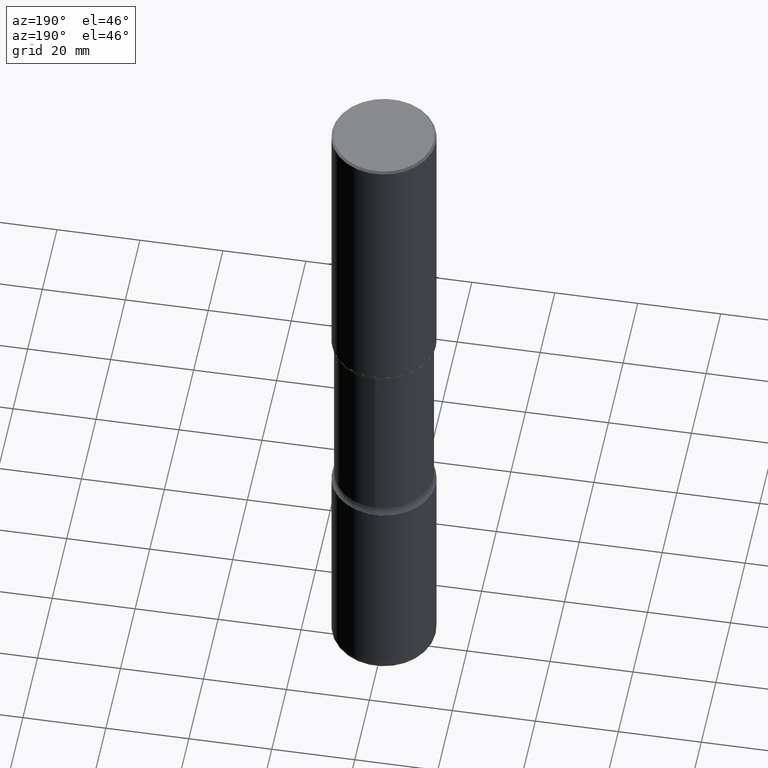
[diagram: clean part render]
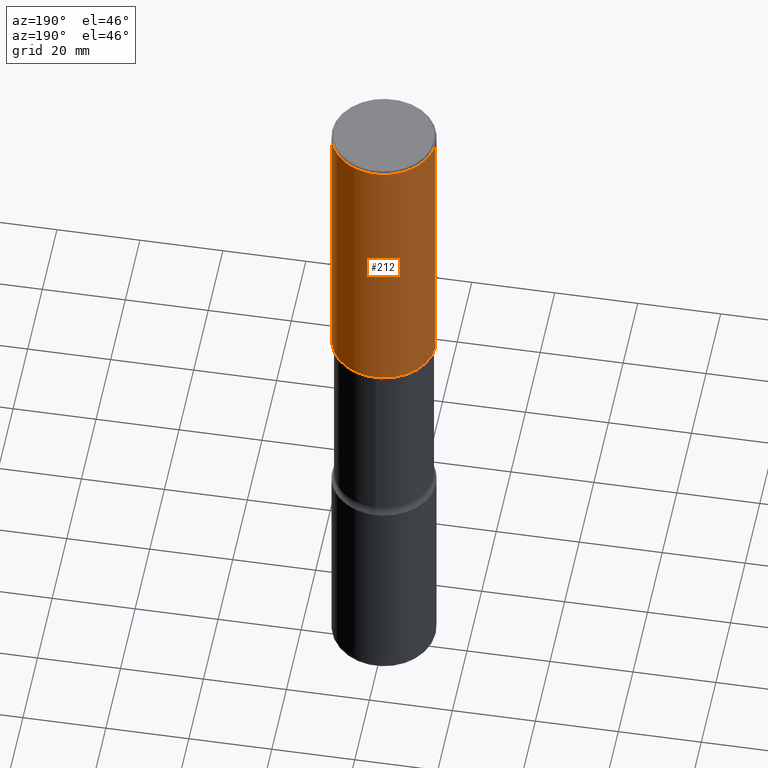
[diagram: same view with one face highlighted and labeled with its STEP entity id]
A machine part, auxiliary view. The second image highlights one B-rep face of the part: STEP entity #212.
In plain terms, the highlighted cylindrical surface (partial cylindrical patch) has radius 12.5006 mm, axis along (-0, 0, 1).
Its self-contained STEP definition (entity closure, byte-faithful):
#26 = CYLINDRICAL_SURFACE ( 'NONE', #505, 0.4921500000000000874 ) ;
#42 = CIRCLE ( 'NONE', #402, 0.4921500000000002539 ) ;
#57 = DIRECTION ( 'NONE',  ( 1.000000000000000000, -6.982962677686265922E-15, 4.876176775795935793E-29 ) ) ;
#80 = CARTESIAN_POINT ( 'NONE',  ( -0.4921500000000002539, -1.349065450204005425E-15, -2.755899999999998240 ) ) ;
#125 = EDGE_LOOP ( 'NONE', ( #174, #211, #469, #365 ) ) ;
#130 = EDGE_CURVE ( 'NONE', #398, #197, #354, .T. ) ;
#138 = DIRECTION ( 'NONE',  ( -2.445468806185136597E-29, 3.491481338843145583E-15, 1.000000000000000000 ) ) ;
#141 = DIRECTION ( 'NONE',  ( -2.445468806185136877E-29, 3.491481338843145188E-15, 1.000000000000000000 ) ) ;
#148 = EDGE_CURVE ( 'NONE', #548, #197, #404, .T. ) ;
#155 = FACE_OUTER_BOUND ( 'NONE', #125, .T. ) ;
#174 = ORIENTED_EDGE ( 'NONE', *, *, #290, .T. ) ;
#186 = CARTESIAN_POINT ( 'NONE',  ( 4.890937612370289799E-31, -6.982962677686315028E-17, -0.02000000000000006981 ) ) ;
#193 = CARTESIAN_POINT ( 'NONE',  ( 0.000000000000000000, 0.000000000000000000, 0.000000000000000000 ) ) ;
#197 = VERTEX_POINT ( 'NONE', #273 ) ;
#204 = CARTESIAN_POINT ( 'NONE',  ( 6.739467482965614869E-29, -9.622173421717819657E-15, -2.755899999999998240 ) ) ;
#211 = ORIENTED_EDGE ( 'NONE', *, *, #148, .T. ) ;
#212 = ADVANCED_FACE ( 'NONE', ( #155 ), #26, .T. ) ;
#273 = CARTESIAN_POINT ( 'NONE',  ( -0.4921499999999999209, 3.366835455046432084E-15, -0.02000000000000006981 ) ) ;
#283 = VECTOR ( 'NONE', #141, 39.37007874015748143 ) ;
#290 = EDGE_CURVE ( 'NONE', #383, #548, #42, .T. ) ;
#329 = VECTOR ( 'NONE', #512, 39.37007874015748143 ) ;
#333 = CARTESIAN_POINT ( 'NONE',  ( 0.4921500000000000874, -3.436665081823296565E-15, 2.399810400207970163E-29 ) ) ;
#354 = CIRCLE ( 'NONE', #555, 0.4921499999999999209 ) ;
#364 = DIRECTION ( 'NONE',  ( -2.445468806185136597E-29, 3.491481338843145583E-15, 1.000000000000000000 ) ) ;
#365 = ORIENTED_EDGE ( 'NONE', *, *, #540, .F. ) ;
#368 = CARTESIAN_POINT ( 'NONE',  ( 0.4921499999999999209, -3.446223716380121955E-15, -0.02000000000000006981 ) ) ;
#379 = DIRECTION ( 'NONE',  ( 1.000000000000000000, -6.982962677686266711E-15, 0.000000000000000000 ) ) ;
#383 = VERTEX_POINT ( 'NONE', #471 ) ;
#398 = VERTEX_POINT ( 'NONE', #368 ) ;
#402 = AXIS2_PLACEMENT_3D ( 'NONE', #204, #411, #379 ) ;
#404 = LINE ( 'NONE', #448, #283 ) ;
#411 = DIRECTION ( 'NONE',  ( -2.445468806185136597E-29, 3.491481338843145583E-15, 1.000000000000000000 ) ) ;
#443 = DIRECTION ( 'NONE',  ( 1.000000000000000000, -6.982962677686265922E-15, 0.000000000000000000 ) ) ;
#448 = CARTESIAN_POINT ( 'NONE',  ( -0.4921500000000000874, 3.496936074043333686E-15, -2.420853904668952350E-29 ) ) ;
#469 = ORIENTED_EDGE ( 'NONE', *, *, #130, .F. ) ;
#471 = CARTESIAN_POINT ( 'NONE',  ( 0.4921500000000002539, -1.305883850354111701E-14, -2.755899999999998240 ) ) ;
#505 = AXIS2_PLACEMENT_3D ( 'NONE', #193, #364, #57 ) ;
#512 = DIRECTION ( 'NONE',  ( -2.445468806185136877E-29, 3.491481338843145188E-15, 1.000000000000000000 ) ) ;
#540 = EDGE_CURVE ( 'NONE', #383, #398, #545, .T. ) ;
#545 = LINE ( 'NONE', #333, #329 ) ;
#548 = VERTEX_POINT ( 'NONE', #80 ) ;
#555 = AXIS2_PLACEMENT_3D ( 'NONE', #186, #138, #443 ) ;